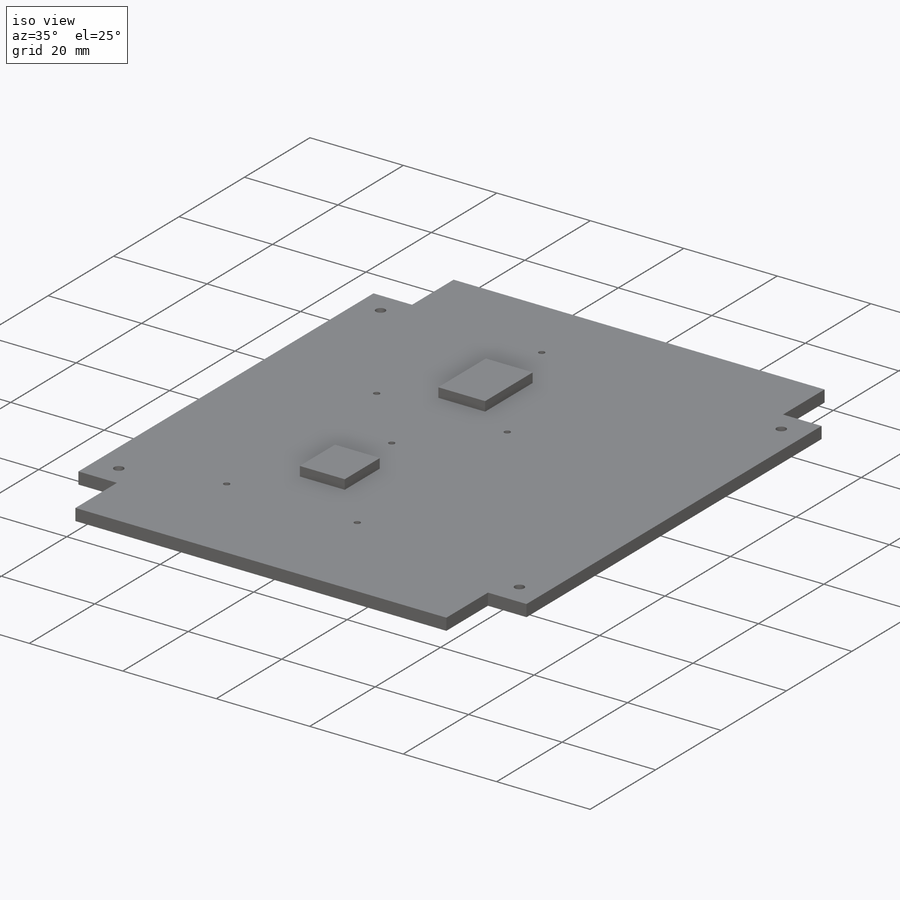
[diagram: iso view]
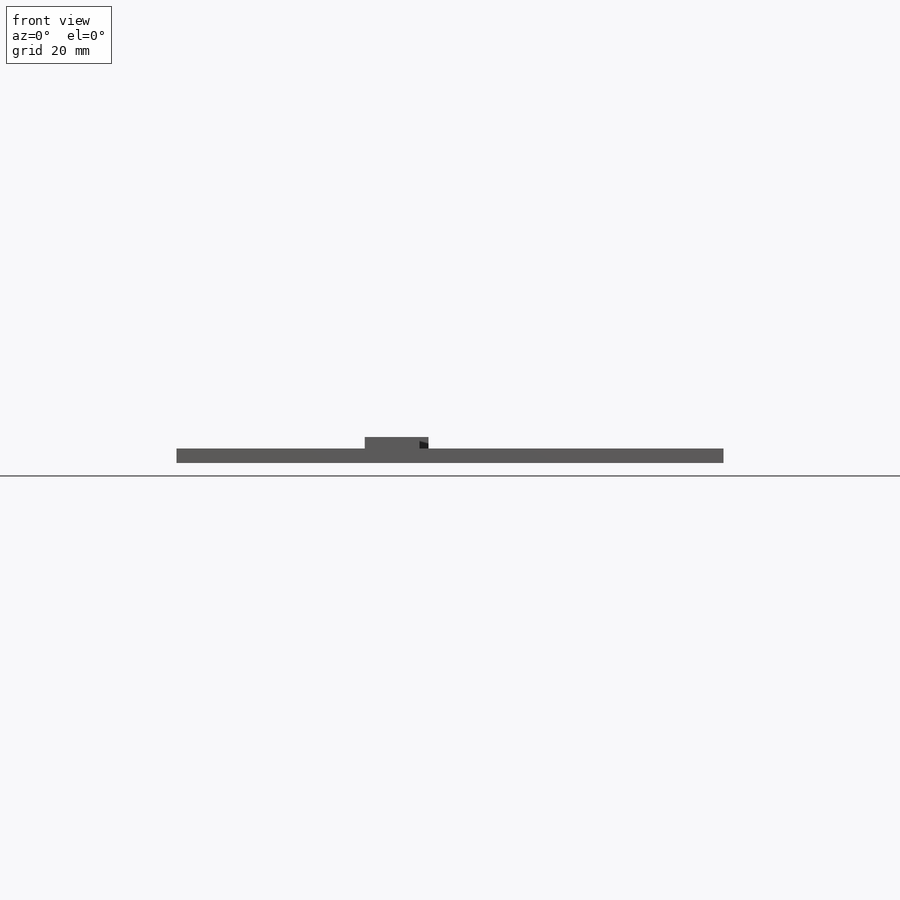
[diagram: front view]
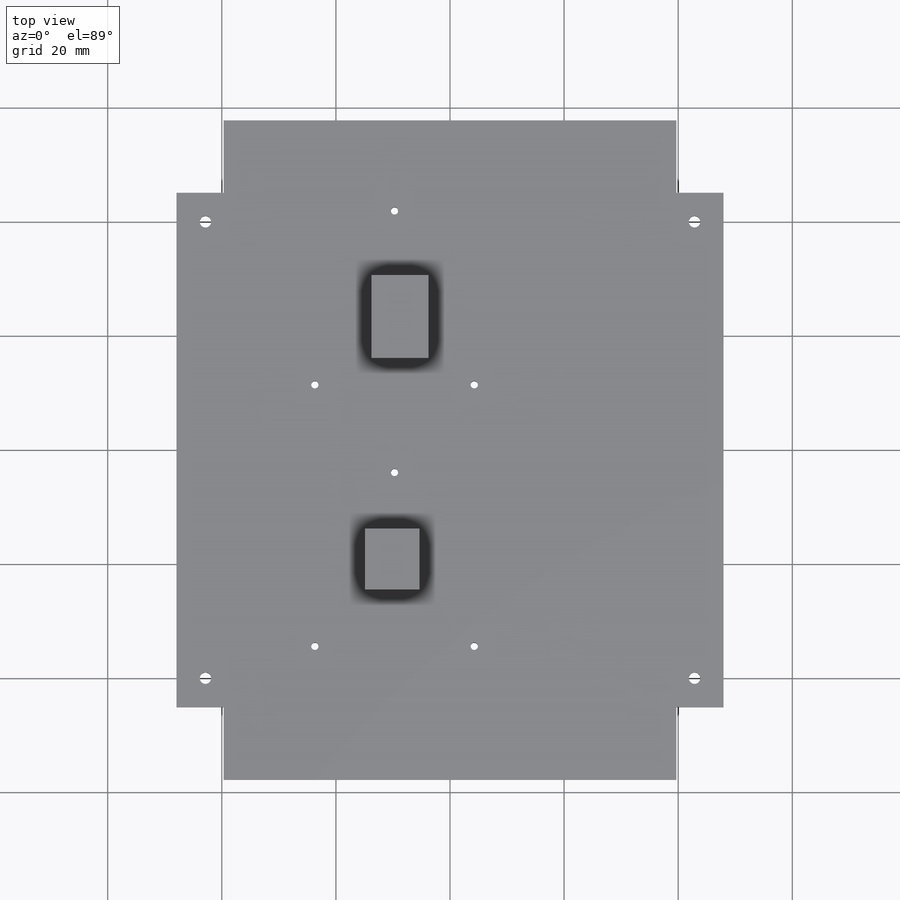
[diagram: top view]
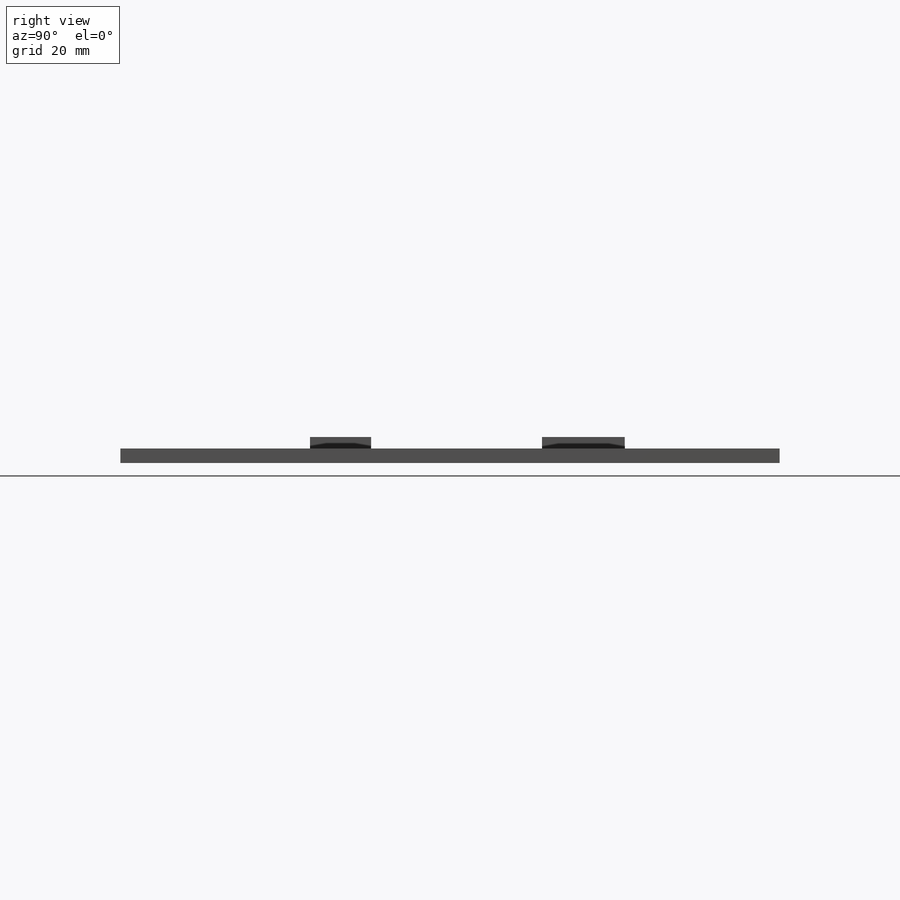
[diagram: right view]
SOLIDWORKS PART (.sldprt)
format: sldprt  version: not decoded by parser v0  size: 269,824 bytes
history: native  units: mm
features: sketch x4, extrude x2, cut_extrude x2, material x1 (+11 scaffold rows collapsed)
feature tree (20):
  scaffold x11  (default folders/planes/origin — collapsed)
  material  "Material <not specified>"
  sketch  "Sketch1"  dims[D1=115.57mm D2=95.885mm D3=8.255mm D4=12.7mm]
  extrude  "Boss-Extrude1"  Depth=2.54mm
  sketch  "Sketch3"  dims[D1=58.0898mm D2=38.608mm D3=10.7188mm D4=9.6012mm D5=56.7182mm D6=81.153mm D7=10.0076mm D8=14.5034mm]
  extrude  "Boss-Extrude2"  Depth=4.572mm
  sketch  "Sketch4"  dims[D8=1.27mm D9=1.27mm D10=1.27mm D11=1.27mm D12=1.27mm D13=1.27mm D14=5.08mm D1=23.368mm D2=43.688mm D3=71.628mm D4=53.848mm D5=57.658mm D6=69.215mm D7=99.695mm]
  cut_extrude  "Cut-Extrude1"  [1 undecoded]
  sketch  "Sketch5"  dims[D3=~1.99898mm D6=~1.99898mm D7=~1.99898mm D8=~1.99898mm D1=17.78mm D2=5.08mm D4=97.79mm D5=90.805mm]
  cut_extrude  "Cut-Extrude2"  [1 undecoded]
decode coverage: 6 of 8 modeling features carry decoded parameters
note: ~ marks probable driven/reference dimensions
note: 2 parameter values undecoded
note: suppression state not decoded; provenance and decode notes live in map.json
